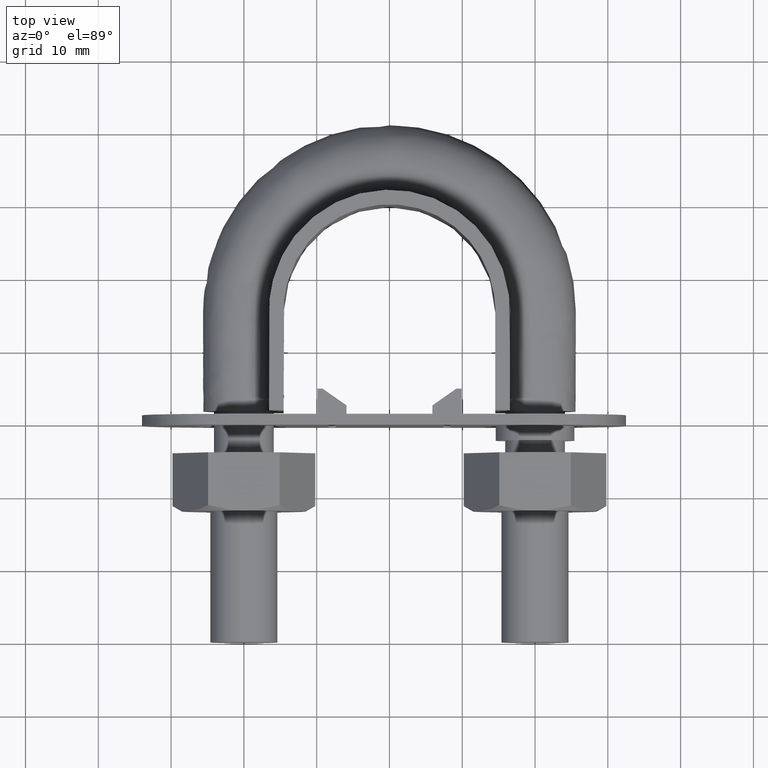
[diagram: clean part render]
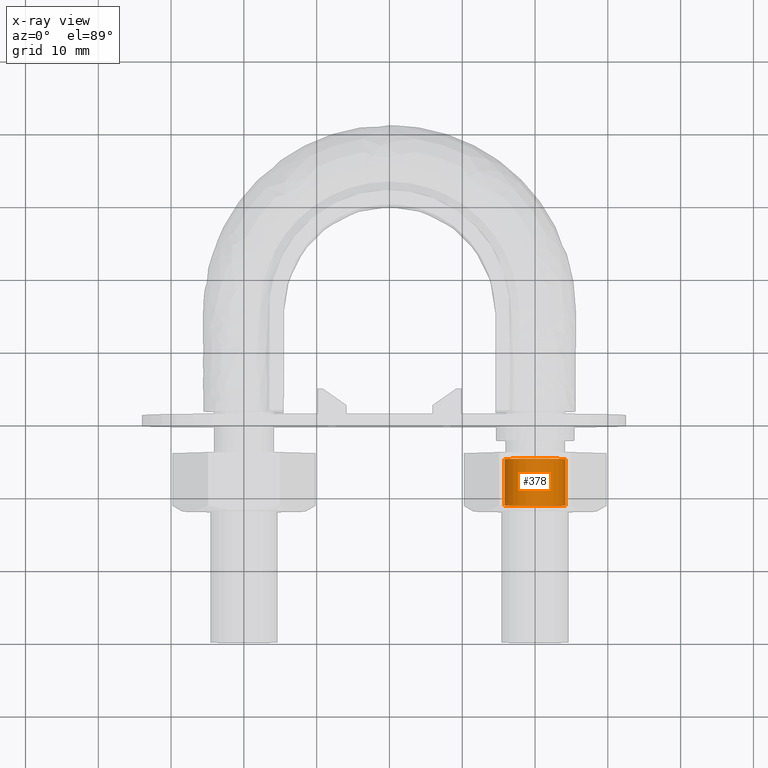
[diagram: x-ray — body ghosted, one internal face saturated and labeled with its STEP entity id]
A machine part, top view, then the same camera in x-ray: the body is ghosted and one INTERNAL B-rep face — a face not visible from any outside direction — is saturated and labeled: STEP entity #378.
In plain terms, the highlighted cylindrical surface (bore or boss wall) has radius 4.188 mm, axis along (-0, -1, -0).
Its self-contained STEP definition (entity closure, byte-faithful):
#378 = ADVANCED_FACE( '', ( #632, #633 ), #634, .F. );
#632 = FACE_OUTER_BOUND( '', #1703, .T. );
#633 = FACE_OUTER_BOUND( '', #1704, .T. );
#634 = CYLINDRICAL_SURFACE( '', #1705, 4.18800000000000 );
#1703 = EDGE_LOOP( '', ( #2523 ) );
#1704 = EDGE_LOOP( '', ( #2524 ) );
#1705 = AXIS2_PLACEMENT_3D( '', #2525, #2526, #2527 );
#2523 = ORIENTED_EDGE( '', *, *, #2772, .T. );
#2524 = ORIENTED_EDGE( '', *, *, #2771, .F. );
#2525 = CARTESIAN_POINT( '', ( 20.0000000000000, 26.0000000000000, 1.54596387774707E-015 ) );
#2526 = DIRECTION( '', ( -4.89842541528951E-016, -1.00000000000000, -6.12303176911188E-017 ) );
#2527 = DIRECTION( '', ( 0.866025399121842, -3.93600923194421E-016, -0.500000008075854 ) );
#2771 = EDGE_CURVE( '', #3167, #3167, #3168, .T. );
#2772 = EDGE_CURVE( '', #3169, #3169, #3170, .T. );
#3167 = VERTEX_POINT( '', #3995 );
#3168 = CIRCLE( '', #3996, 4.18800000000000 );
#3169 = VERTEX_POINT( '', #3997 );
#3170 = CIRCLE( '', #3998, 4.18800000000000 );
#3995 = CARTESIAN_POINT( '', ( 23.6269143715223, 18.8120000000002, -2.09400003382167 ) );
#3996 = AXIS2_PLACEMENT_3D( '', #4347, #4348, #4349 );
#3997 = CARTESIAN_POINT( '', ( 23.6269143715223, 25.1880000000000, -2.09400003382167 ) );
#3998 = AXIS2_PLACEMENT_3D( '', #4350, #4351, #4352 );
#4347 = CARTESIAN_POINT( '', ( 20.0000000000000, 18.8120000000002, 1.10584035418332E-015 ) );
#4348 = DIRECTION( '', ( 4.89842541528951E-016, 1.00000000000000, 6.12303176911188E-017 ) );
#4349 = DIRECTION( '', ( 0.866025399121842, -3.93600923194421E-016, -0.500000008075854 ) );
#4350 = CARTESIAN_POINT( '', ( 20.0000000000000, 25.1880000000000, 1.49624485978189E-015 ) );
#4351 = DIRECTION( '', ( 4.89842541528951E-016, 1.00000000000000, 6.12303176911188E-017 ) );
#4352 = DIRECTION( '', ( 0.866025399121842, -3.93600923194421E-016, -0.500000008075854 ) );